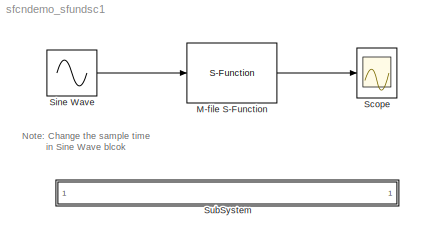
MODEL sfcndemo_sfundsc1
KIND model
BLOCK [S-Function] M-file S-Function
  FunctionName = sfundsc1
  MaskDescription = This is a M-file S-function which demonstrates how to inherited sample time from the input block.
  MaskDisplay = disp('Inherited\\nsample time')
  MaskIconFrame = on
  MaskIconOpaque = on
  MaskIconRotate = none
  MaskIconUnits = autoscale
  MaskType = S-function: sfun_dsc1
  Ports = [1, 1]
BLOCK [Scope] Scope
  DataFormat = StructureWithTime
  NumInputPorts = 1
  Ports = [1]
  SampleInput = on
  SampleTime = 0.05
  TimeRange = 10
  YMax = 1
  YMin = -1
BLOCK [Sin] Sine Wave
  Ports = [0, 1]
  SampleTime = 0.1
BLOCK [SubSystem] SubSystem
  MaskDisplay = disp('matlabroot<path>');
  MaskIconFrame = on
  MaskIconOpaque = on
  MaskIconRotate = none
  MaskIconUnits = autoscale
  MinAlgLoopOccurrences = off
  OpenFcn = edit(fullfile(matlabroot,'toolbox','simulink','blocks','sfundsc1.m'))
  Ports = []
  PropExecContextAcrossSSBoundary = on
  RTWSystemCode = Auto
  TreatAsAtomicUnit = off
ANNOTATION (root): Note: Change the sample time\nin Sine Wave blcok
LINE M-file S-Function:1 -> Scope:1
LINE Sine Wave:1 -> M-file S-Function:1
note: 1 file-system path scrubbed to <path> (not preserved elsewhere — flat text is the only slx artifact)
